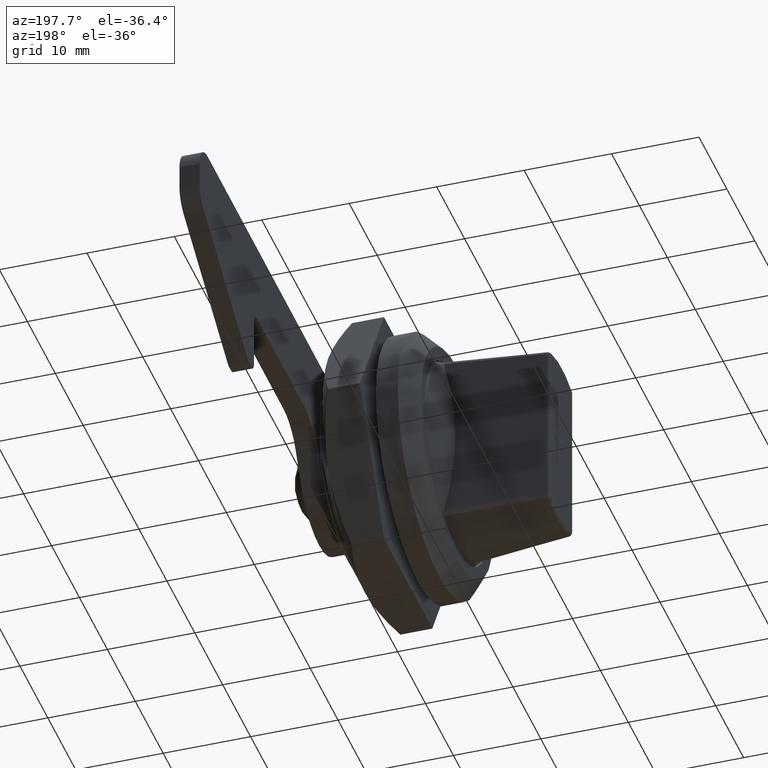
[diagram: clean part render]
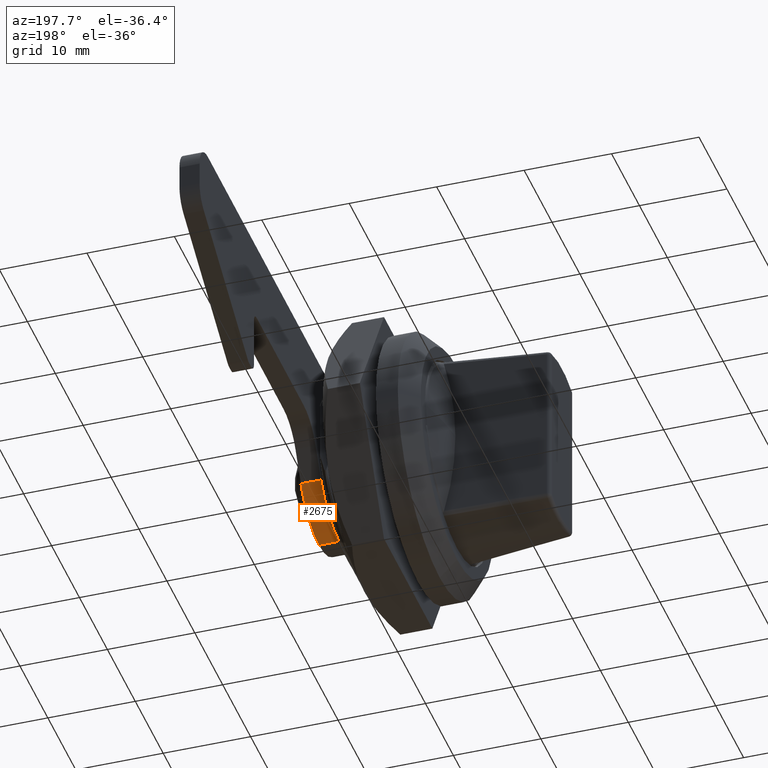
[diagram: same view with one face highlighted and labeled with its STEP entity id]
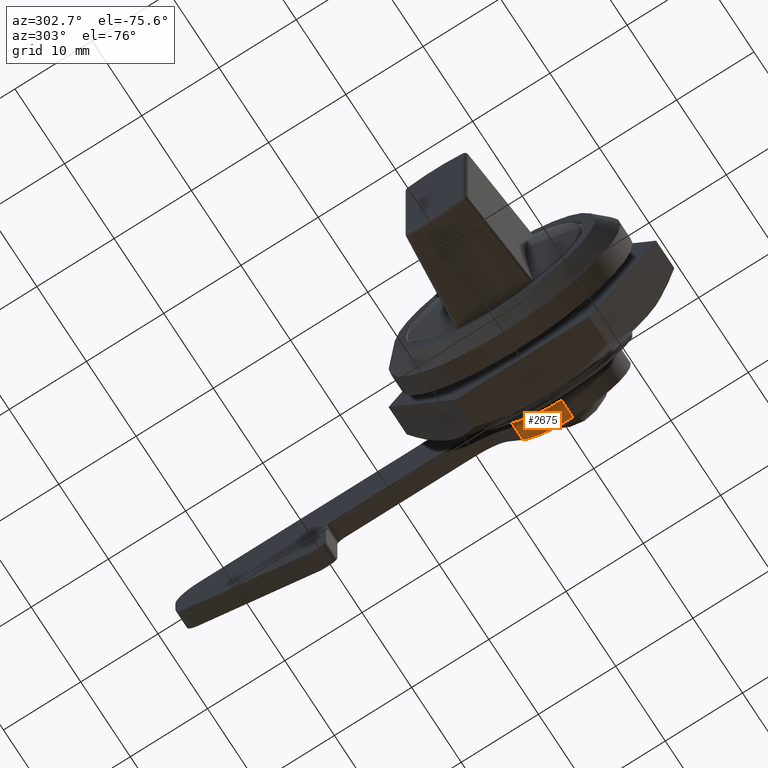
[diagram: same view with one face highlighted and labeled with its STEP entity id]
A machine part, auxiliary view. The second image highlights one B-rep face of the part: STEP entity #2675.
A second angle (auxiliary view) of the same face is appended — the face is thin or edge-on in the first view.
In plain terms, the highlighted cylindrical surface (partial cylindrical patch) has radius 7.5 mm, axis along (-1, 0, 0).
Its self-contained STEP definition (entity closure, byte-faithful):
#1028 = EDGE_CURVE ( 'NONE', #18974, #14636, #27196, .T. ) ;
#1092 = CIRCLE ( 'NONE', #16313, 7.500000000000000000 ) ;
#1376 = DIRECTION ( 'NONE',  ( 0.0000000000000000000, 0.0000000000000000000, -1.000000000000000000 ) ) ;
#2307 = CARTESIAN_POINT ( 'NONE',  ( 15.80000000000835300, -4.440892098500630100E-016, -7.500000000000000000 ) ) ;
#2371 = VECTOR ( 'NONE', #11133, 1000.000000000000000 ) ;
#2675 = ADVANCED_FACE ( 'NONE', ( #19015 ), #7526, .T. ) ;
#2867 = ORIENTED_EDGE ( 'NONE', *, *, #16038, .T. ) ;
#2992 = ORIENTED_EDGE ( 'NONE', *, *, #27818, .F. ) ;
#3609 = ORIENTED_EDGE ( 'NONE', *, *, #1028, .F. ) ;
#4478 = VERTEX_POINT ( 'NONE', #2307 ) ;
#5325 = CARTESIAN_POINT ( 'NONE',  ( 15.80000000000835300, -4.440892098500630100E-016, 0.0000000000000000000 ) ) ;
#5341 = EDGE_CURVE ( 'NONE', #25945, #4478, #1092, .T. ) ;
#5606 = LINE ( 'NONE', #19796, #22859 ) ;
#6784 = CARTESIAN_POINT ( 'NONE',  ( 1013.500000000000100, -4.440892098500630100E-016, -7.500000000000000000 ) ) ;
#7482 = DIRECTION ( 'NONE',  ( 0.0000000000000000000, -1.776356839400250500E-015, 1.000000000000000000 ) ) ;
#7526 = CYLINDRICAL_SURFACE ( 'NONE', #27327, 7.500000000000000000 ) ;
#7662 = CARTESIAN_POINT ( 'NONE',  ( 13.50000000000836000, -4.440892098500630100E-016, -7.500000000000000000 ) ) ;
#8770 = LINE ( 'NONE', #6784, #2371 ) ;
#9684 = CARTESIAN_POINT ( 'NONE',  ( 13.50000000000836000, -4.440892098500630100E-016, 0.0000000000000000000 ) ) ;
#9901 = CARTESIAN_POINT ( 'NONE',  ( 15.80000000000835300, 6.495190528383300700, -3.749999999999914700 ) ) ;
#11133 = DIRECTION ( 'NONE',  ( -1.000000000000000000, 0.0000000000000000000, 0.0000000000000000000 ) ) ;
#11295 = EDGE_LOOP ( 'NONE', ( #17355, #2867, #3609, #2992 ) ) ;
#11871 = DIRECTION ( 'NONE',  ( 0.0000000000000000000, -1.776356839400250500E-015, 1.000000000000000000 ) ) ;
#13367 = CARTESIAN_POINT ( 'NONE',  ( 13.50000000000836000, 6.495190528383300700, -3.749999999999914700 ) ) ;
#14636 = VERTEX_POINT ( 'NONE', #7662 ) ;
#16038 = EDGE_CURVE ( 'NONE', #4478, #14636, #8770, .T. ) ;
#16313 = AXIS2_PLACEMENT_3D ( 'NONE', #5325, #20431, #7482 ) ;
#17355 = ORIENTED_EDGE ( 'NONE', *, *, #5341, .T. ) ;
#18974 = VERTEX_POINT ( 'NONE', #13367 ) ;
#19015 = FACE_OUTER_BOUND ( 'NONE', #11295, .T. ) ;
#19796 = CARTESIAN_POINT ( 'NONE',  ( 1013.500000000000100, 6.495190528383300700, -3.749999999999914700 ) ) ;
#20431 = DIRECTION ( 'NONE',  ( -1.000000000000000000, -0.0000000000000000000, -0.0000000000000000000 ) ) ;
#21978 = DIRECTION ( 'NONE',  ( -1.000000000000000000, 0.0000000000000000000, 0.0000000000000000000 ) ) ;
#22859 = VECTOR ( 'NONE', #21978, 1000.000000000000000 ) ;
#22921 = CARTESIAN_POINT ( 'NONE',  ( 1013.500000000000100, -4.440892098500630100E-016, 0.0000000000000000000 ) ) ;
#24839 = DIRECTION ( 'NONE',  ( -1.000000000000000000, -0.0000000000000000000, -0.0000000000000000000 ) ) ;
#25099 = DIRECTION ( 'NONE',  ( -1.000000000000000000, 0.0000000000000000000, 0.0000000000000000000 ) ) ;
#25945 = VERTEX_POINT ( 'NONE', #9901 ) ;
#26948 = AXIS2_PLACEMENT_3D ( 'NONE', #9684, #24839, #11871 ) ;
#27196 = CIRCLE ( 'NONE', #26948, 7.500000000000000000 ) ;
#27327 = AXIS2_PLACEMENT_3D ( 'NONE', #22921, #25099, #1376 ) ;
#27818 = EDGE_CURVE ( 'NONE', #25945, #18974, #5606, .T. ) ;